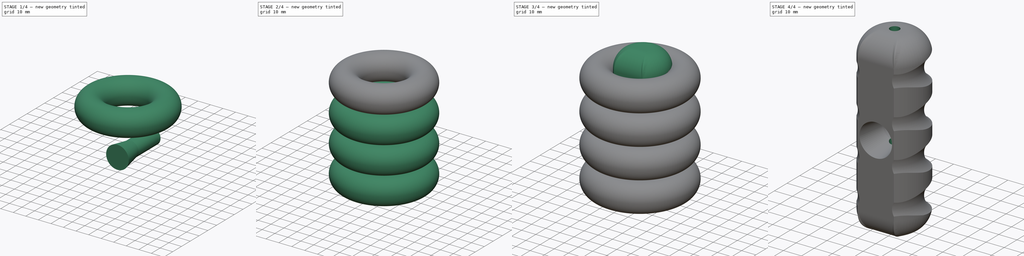
[diagram: build sequence overview — one tinted view per stage of 4, left to right]
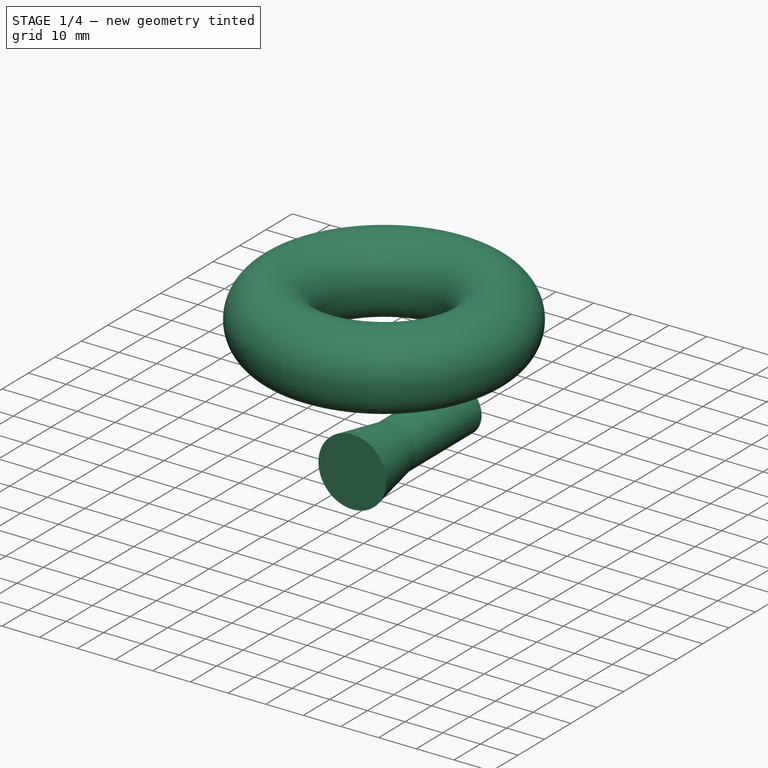
[diagram: stage 1 of 4 — iso view after this stage's code; geometry added in this stage tinted green]
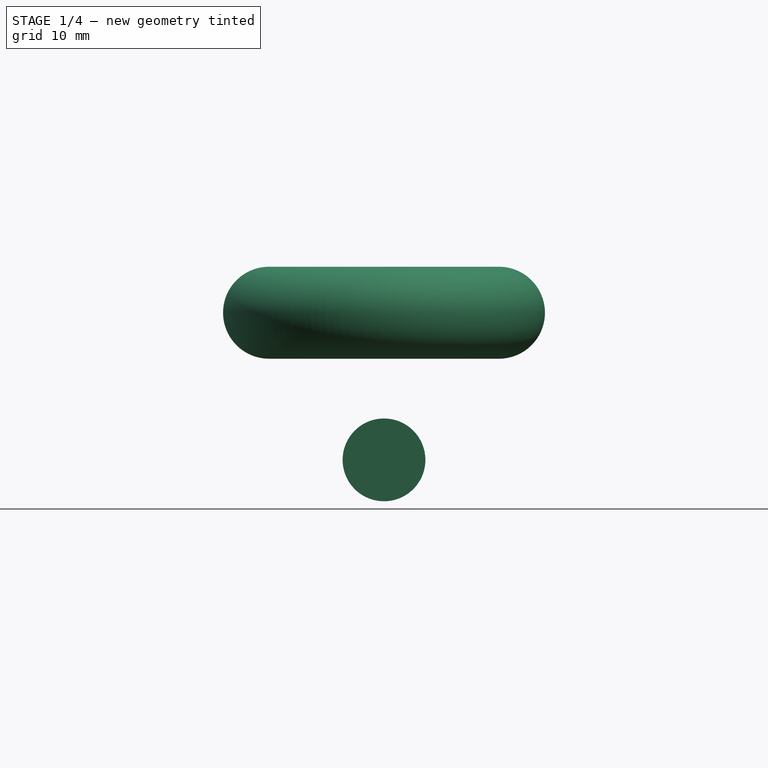
[diagram: stage 1 of 4 — front view after this stage's code; geometry added in this stage tinted green]
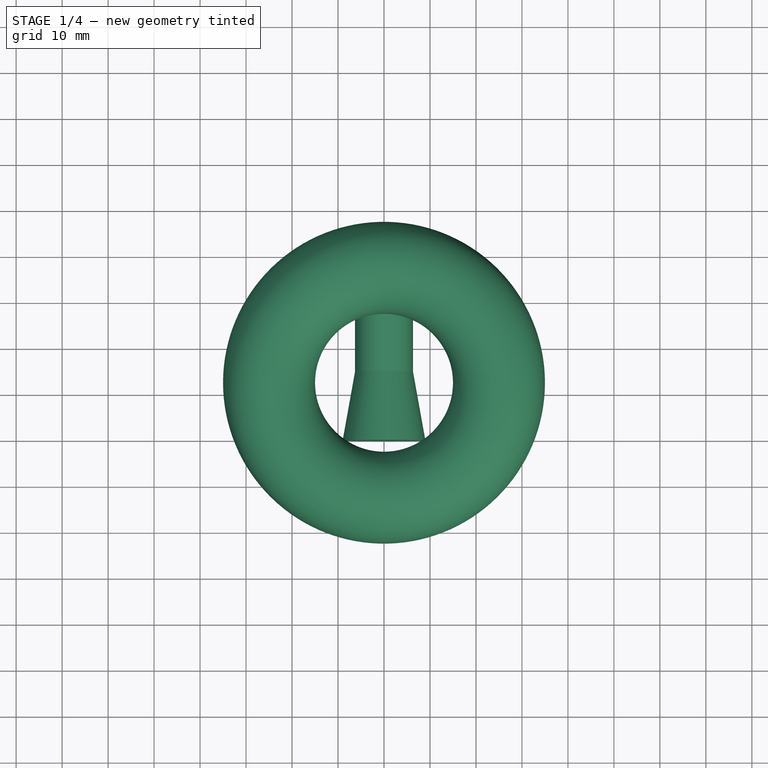
[diagram: stage 1 of 4 — top view after this stage's code; geometry added in this stage tinted green]
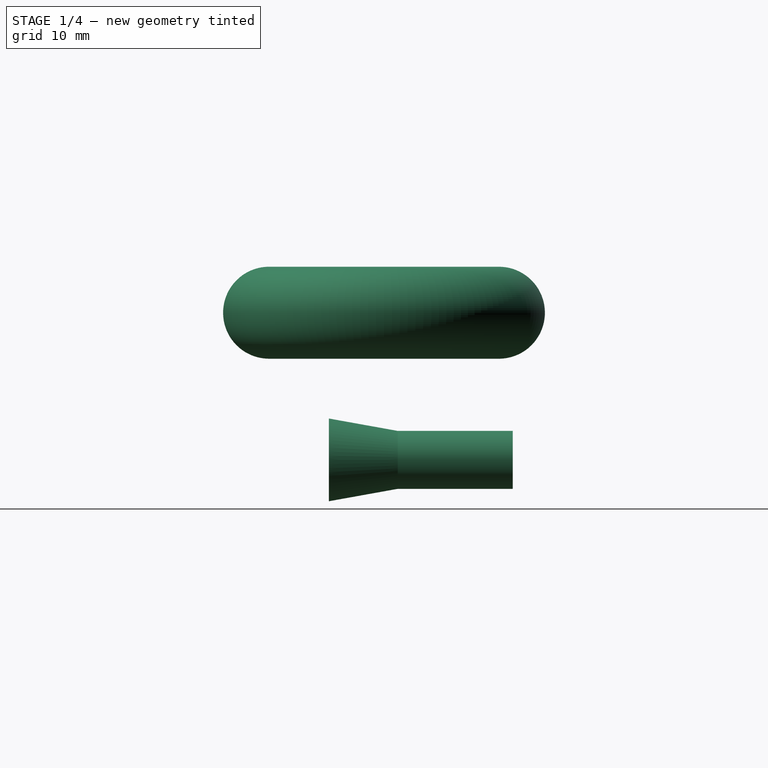
[diagram: stage 1 of 4 — right view after this stage's code; geometry added in this stage tinted green]
FCSTD DOCUMENT  (FreeCAD 0.16R)
Label: handle
License: All rights reserved
LicenseURL: http://en.wikipedia.org/wiki/All_rights_reserved
objects: Part::Torus×4, Sketcher::SketchObject×2, Part::Fillet×2, Part::MultiFuse×2, Part::Cut×2, Part::Part2DObjectPython×1, Part::Extrusion×1, Part::Cone×1, Part::Cylinder×1, PartDesign::Pocket×1
note: 18 computed .brp shape members not serialized (recipe doc carries the construction recipe); baked Part::Feature solids carry a one-line shape summary decoded from their .brp

FEATURE [Part::Torus] Torus003  label="Torus_Finger_4"
  Angle1 = -180
  Angle2 = 180
  Angle3 = 360
  Placement = pos=(0,12,82) rot=(0,0,1;0rad)
  Radius1 = 25
  Radius2 = 10
FEATURE [Part::Cone] Cone
  Angle = 360
  Height = 15
  Placement = pos=(0,15,50) rot=(1,0,0;1.5708rad)
  Radius1 = 6.3
  Radius2 = 9
FEATURE [Part::Cylinder] Cylinder
  Angle = 360
  Height = 25
  Placement = pos=(0,40,50) rot=(1,0,0;1.5708rad)
  Radius = 6.3
FEATURE [Part::MultiFuse] Fusion001  label="Fusion_Hole_Cut"
  Shapes = -> [Cylinder,Cone]
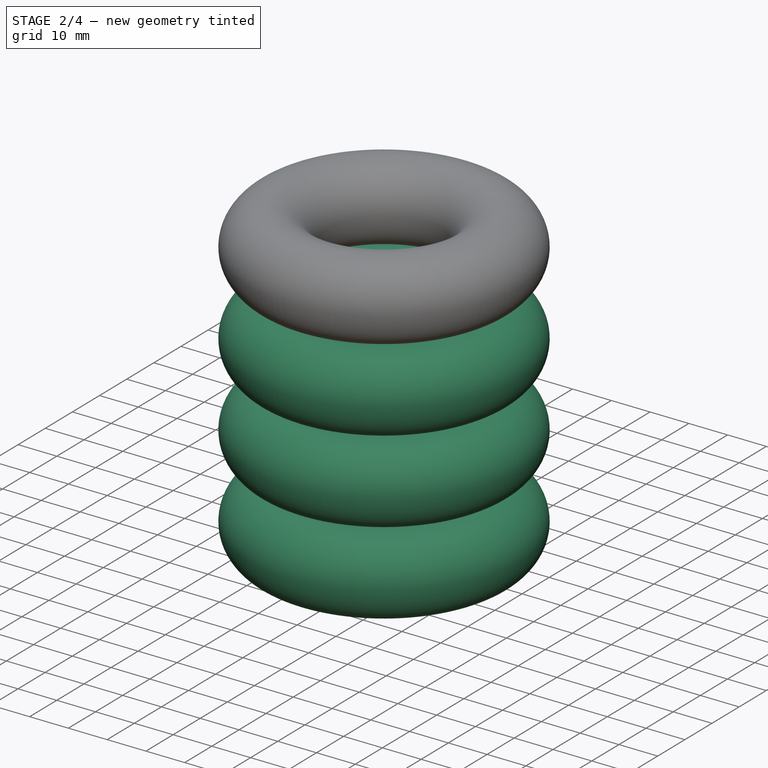
[diagram: stage 2 of 4 — iso view after this stage's code; geometry added in this stage tinted green]
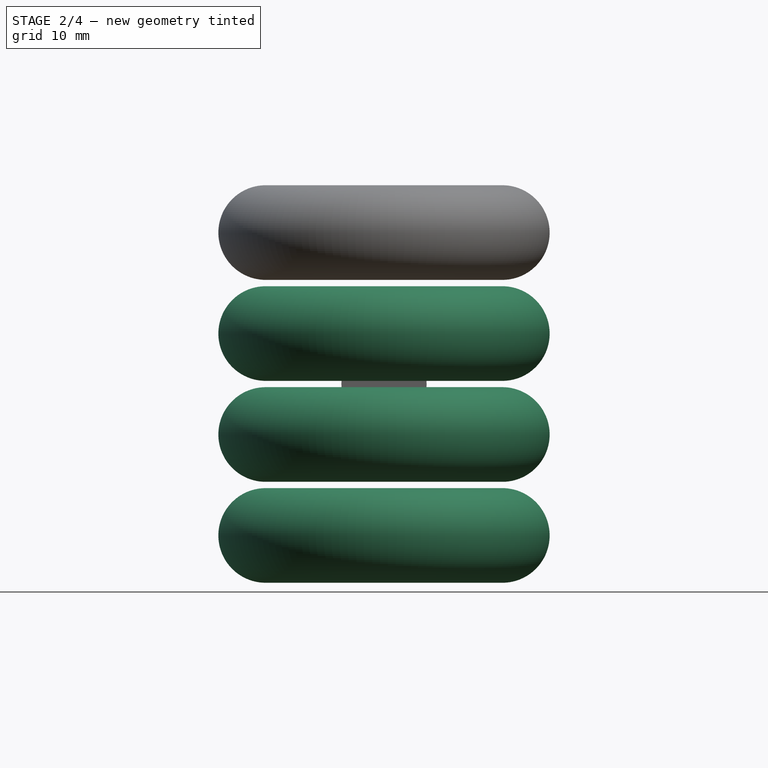
[diagram: stage 2 of 4 — front view after this stage's code; geometry added in this stage tinted green]
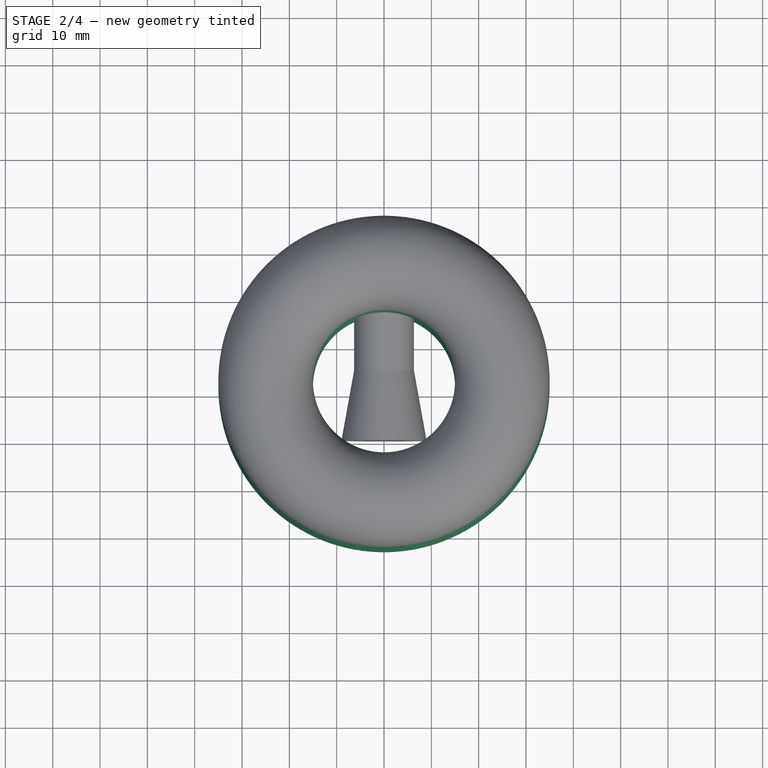
[diagram: stage 2 of 4 — top view after this stage's code; geometry added in this stage tinted green]
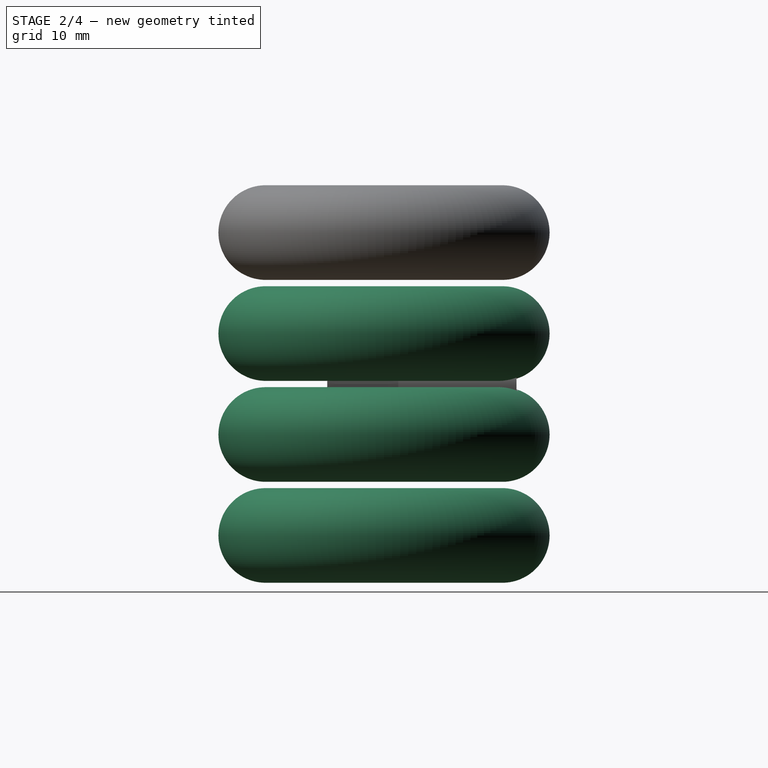
[diagram: stage 2 of 4 — right view after this stage's code; geometry added in this stage tinted green]
FEATURE [Part::Torus] Torus  label="Torus_Finger_1"
  Angle1 = -180
  Angle2 = 180
  Angle3 = 360
  Placement = pos=(0,12,18) rot=(0,0,1;0rad)
  Radius1 = 25
  Radius2 = 10
FEATURE [Part::Torus] Torus001  label="Torus_Finger_2"
  Angle1 = -180
  Angle2 = 180
  Angle3 = 360
  Placement = pos=(0,12,39.33) rot=(0,0,1;0rad)
  Radius1 = 25
  Radius2 = 10
FEATURE [Part::Torus] Torus002  label="Torus_Finger_3"
  Angle1 = -180
  Angle2 = 180
  Angle3 = 360
  Placement = pos=(0,12,60.66) rot=(0,0,1;0rad)
  Radius1 = 25
  Radius2 = 10
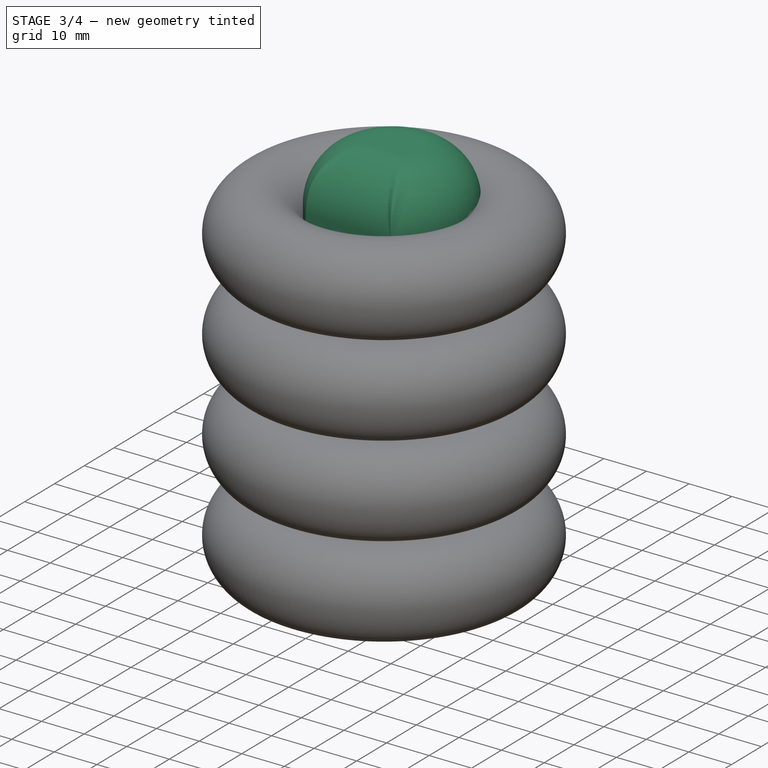
[diagram: stage 3 of 4 — iso view after this stage's code; geometry added in this stage tinted green]
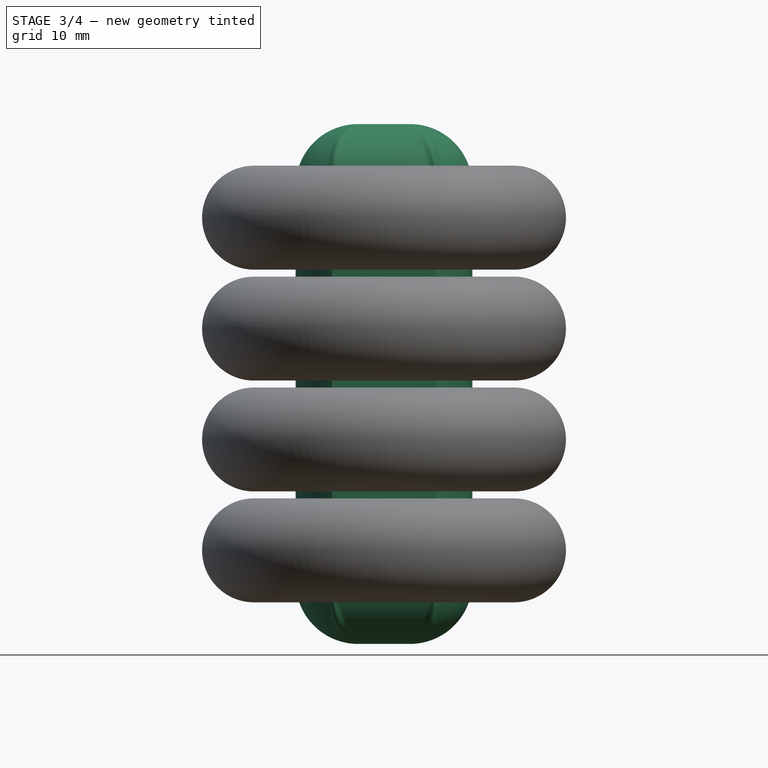
[diagram: stage 3 of 4 — front view after this stage's code; geometry added in this stage tinted green]
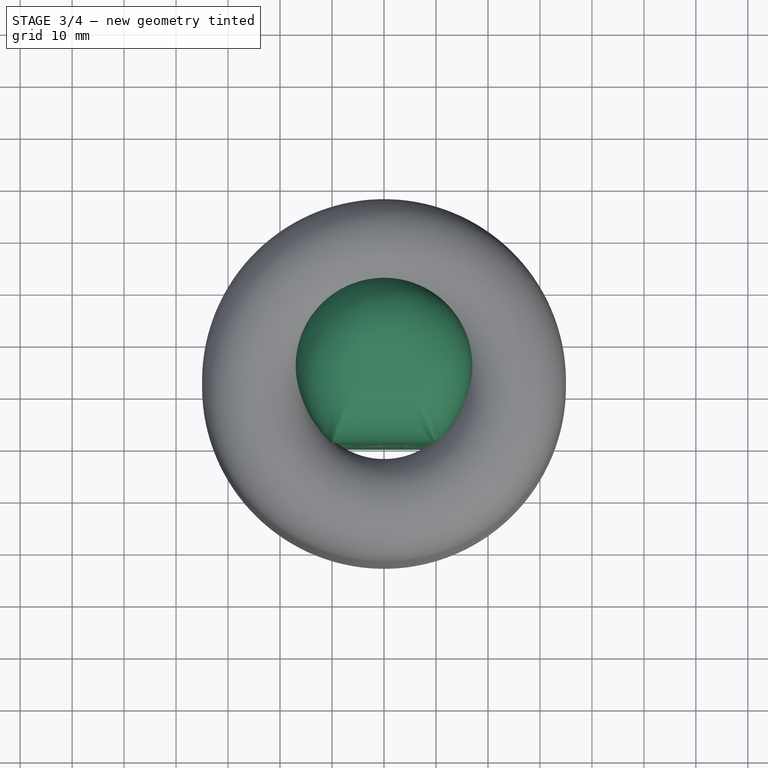
[diagram: stage 3 of 4 — top view after this stage's code; geometry added in this stage tinted green]
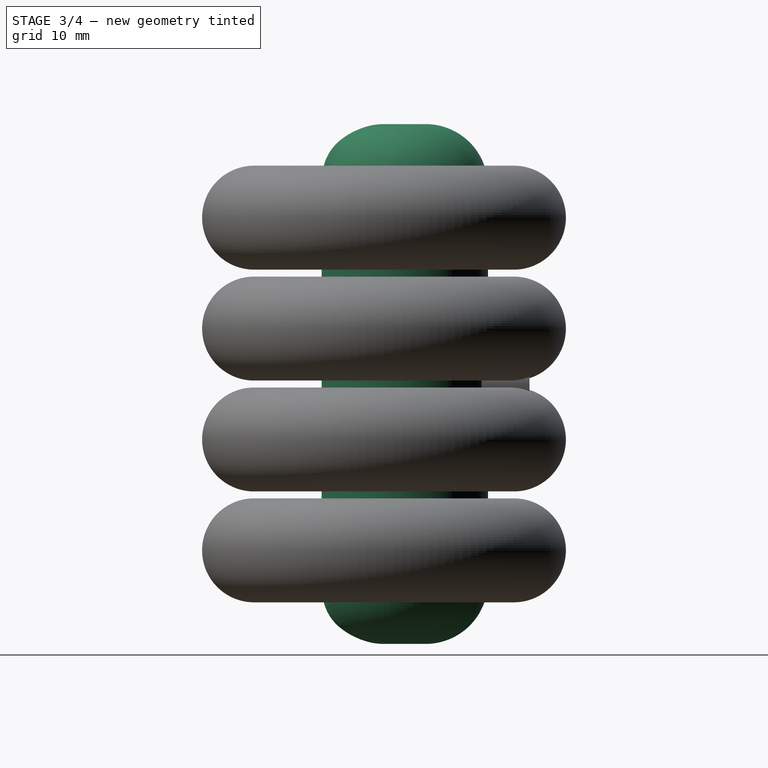
[diagram: stage 3 of 4 — right view after this stage's code; geometry added in this stage tinted green]
FEATURE [Sketcher::SketchObject] Sketch  label="Sketch_Cross_Section"
  sketch-geometry (4):
    g0: LineSegment StartX=-10 StartY=0 StartZ=0 EndX=10 EndY=0 EndZ=0
    g1: ArcOfCircle CenterX=4.5 CenterY=16 CenterZ=0 NormalX=0 NormalY=0 NormalZ=1 Radius=21.5928 StartAngle=3.28098 EndAngle=3.97613
    g2: ArcOfCircle CenterX=0 CenterY=15 CenterZ=0 NormalX=0 NormalY=0 NormalZ=1 Radius=17.0015 StartAngle=6.16528 EndAngle=9.54269
    g3: ArcOfCircle CenterX=-4.5 CenterY=16 CenterZ=0 NormalX=0 NormalY=0 NormalZ=1 Radius=21.5928 StartAngle=5.44865 EndAngle=6.1438
  constraints (15):
    c: PointOnObject(g0,g-1)
    c: Horizontal(g0)
    c: Coincident(g1,g0)
    c: Coincident(g2,g1)
    c: Coincident(g3,g2)
    c: Coincident(g3,g0)
    c: DistanceX(g0,g0) = 20
    c: DistanceX(g-1,g0) = 10
    c: DistanceY(g1,g3) = 0
    c: DistanceX(g-1,g2) = 0
    c: DistanceY(g-1,g1) = 16
    c: DistanceX(g-1,g1) = 4.5
    c: DistanceX(g-1,g3) = -4.5
    c: DistanceY(g-1,g1) = 13
    c: DistanceY(g-1,g2) = 15
FEATURE [Part::Part2DObjectPython] Circle  # Draft 2D object (typed FeaturePython)
  FirstAngle = 0
  LastAngle = 0
  Placement = pos=(-0.231386,14.85,0) rot=(0,0,1;0rad)
  Radius = 17.5
FEATURE [Part::Extrusion] Extrude001  label="Extrude_Main_Body"
  Base = -> Sketch
  Dir = (0,0,100)
  Solid = true
FEATURE [Part::Fillet] Fillet  label="Fillet_Main_Body"
  Base = -> Extrude001
  Edges = 8 edges r=12: [Edge3,Edge4,Edge6,Edge7,Edge9,Edge10,Edge11,Edge12]
FEATURE [Part::MultiFuse] Fusion
  Shapes = -> [Torus,Torus003,Torus001,Torus002]
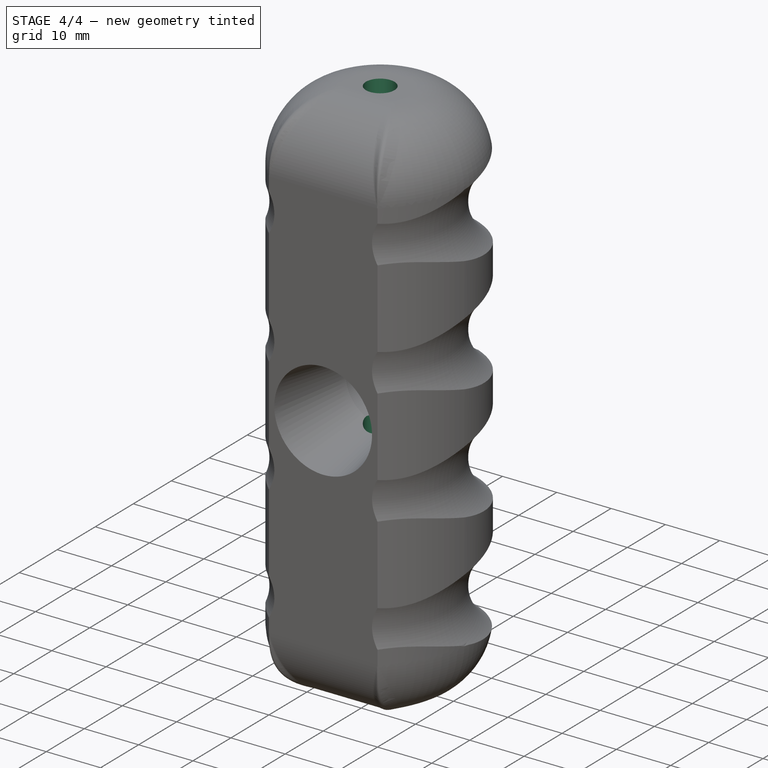
[diagram: stage 4 of 4 — iso view after this stage's code; geometry added in this stage tinted green]
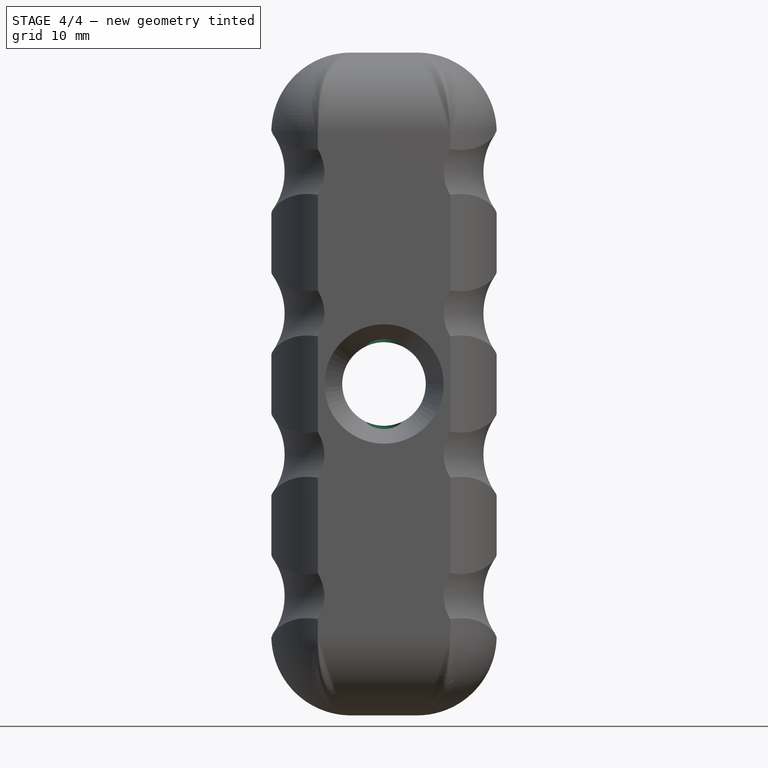
[diagram: stage 4 of 4 — front view after this stage's code; geometry added in this stage tinted green]
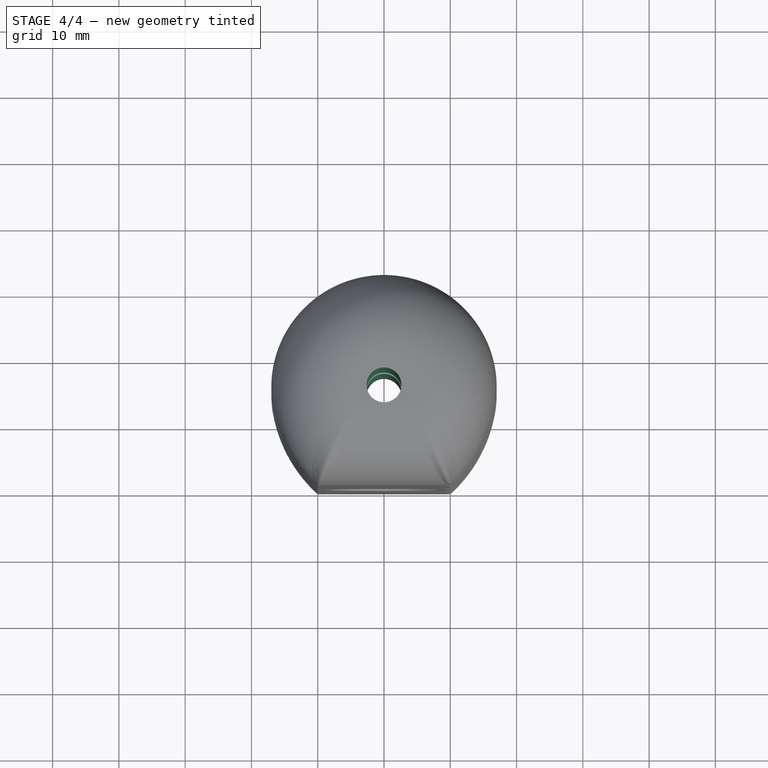
[diagram: stage 4 of 4 — top view after this stage's code; geometry added in this stage tinted green]
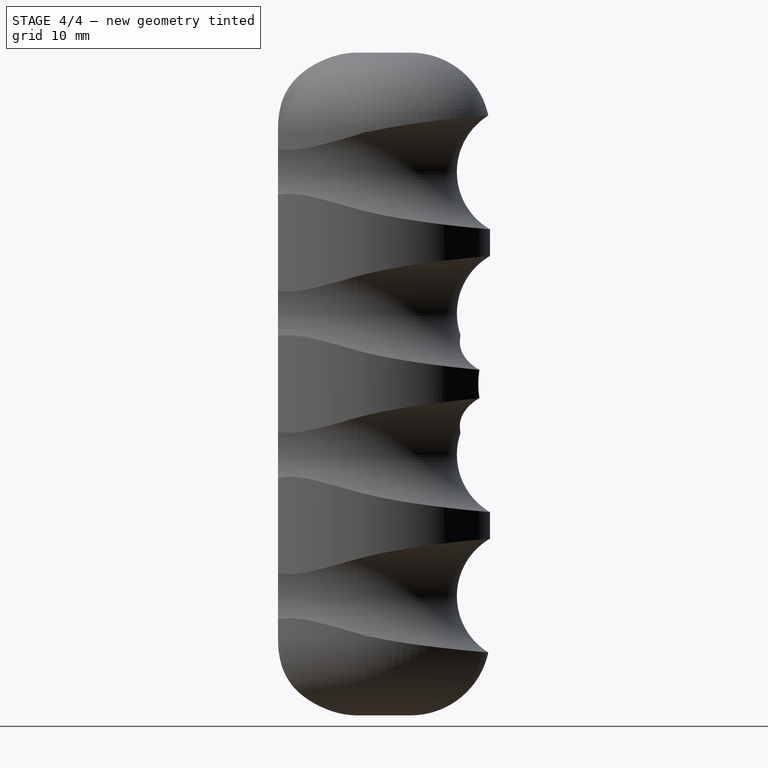
[diagram: stage 4 of 4 — right view after this stage's code; geometry added in this stage tinted green]
FEATURE [Part::Cut] Cut  label="Cut_Body_with_Fingers"
  Base = -> Fillet
  Tool = -> Fusion
FEATURE [Part::Cut] Cut001  label="Cut_Body_with_Hole"
  Base = -> Cut
  Tool = -> Fusion001
FEATURE [Part::Fillet] Fillet001  label="Fillet_Hole_Edge"
  Base = -> Cut001
  Edges = 5 edges r=1: [Edge51,Edge64,Edge87,Edge88,Edge89]
FEATURE [Sketcher::SketchObject] Sketch001
  Placement = pos=(0,0,100) rot=(0,0,1;0rad)
  Support = -> Fillet001 [Face42]
  sketch-geometry (1):
    g0: Circle CenterX=0 CenterY=15 CenterZ=0 NormalX=0 NormalY=0 NormalZ=1 Radius=2.625
  constraints (3):
    c: Radius(g0) = 2.625
    c: DistanceX(g0) = 0
    c: DistanceY(g0) = 15
FEATURE [PartDesign::Pocket] Pocket
  Length = 100.76
  Sketch = -> Sketch001
  Type = 0
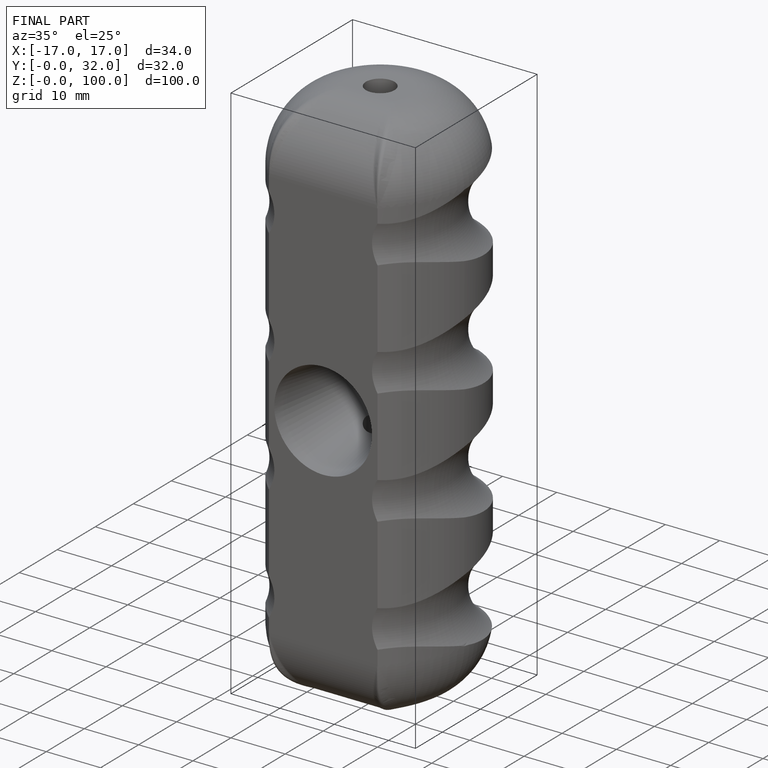
[diagram: finished part — iso view with bounding-box wireframe]
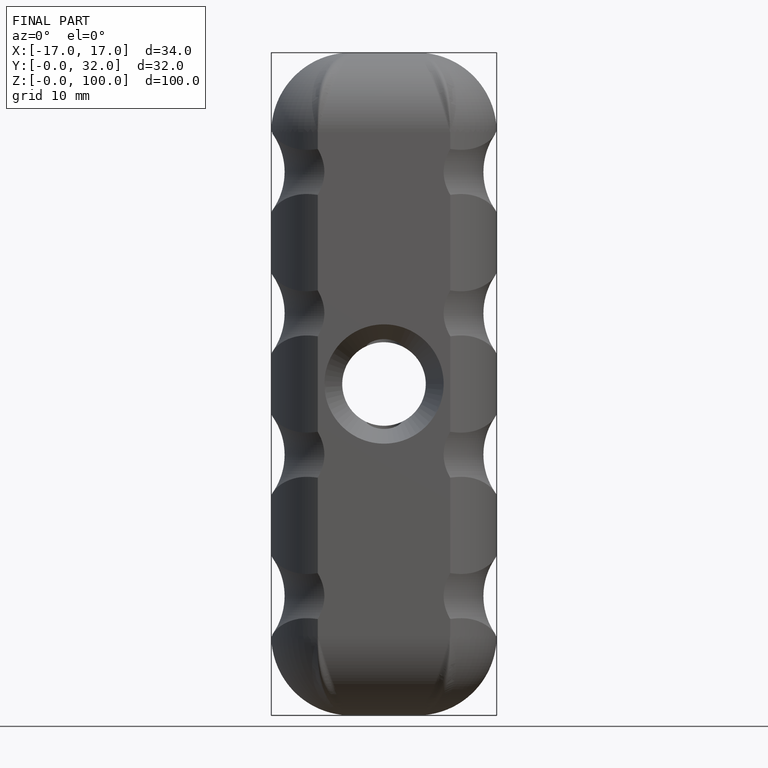
[diagram: finished part — front view with bounding-box wireframe]
